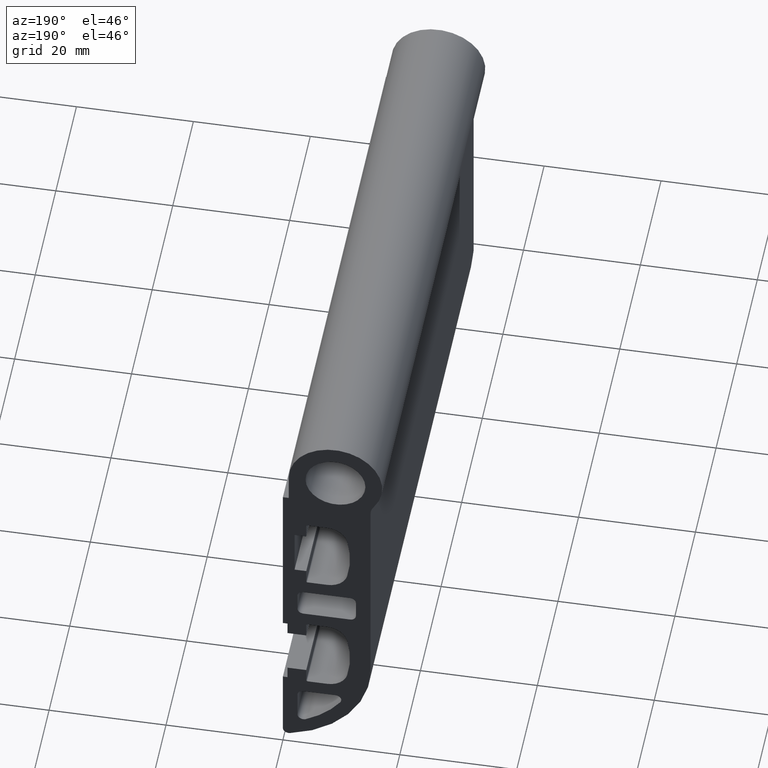
[diagram: clean part render]
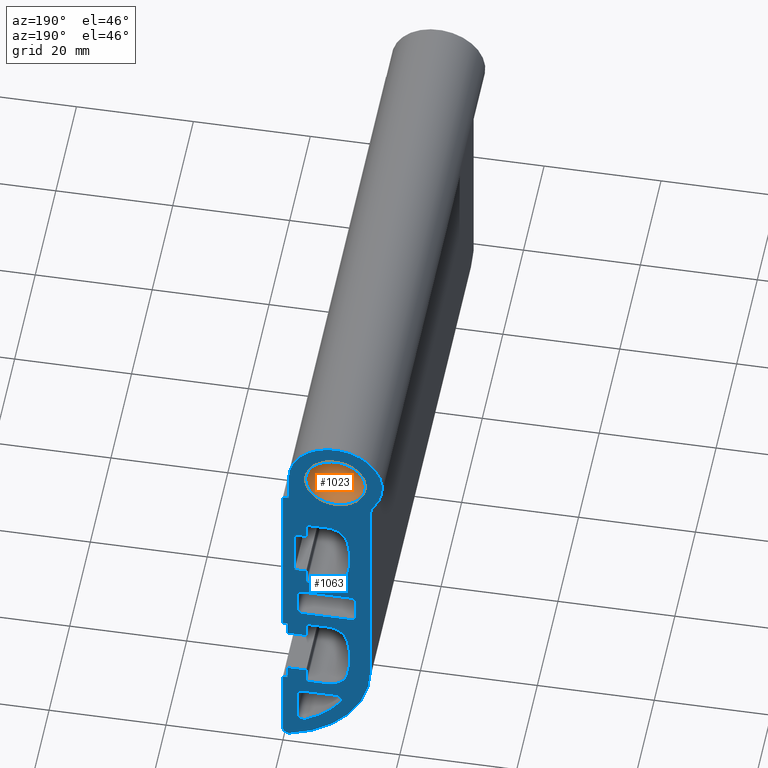
[diagram: same view with the hole feature highlighted: cylindrical wall and planar end face, labeled with their STEP entity ids]
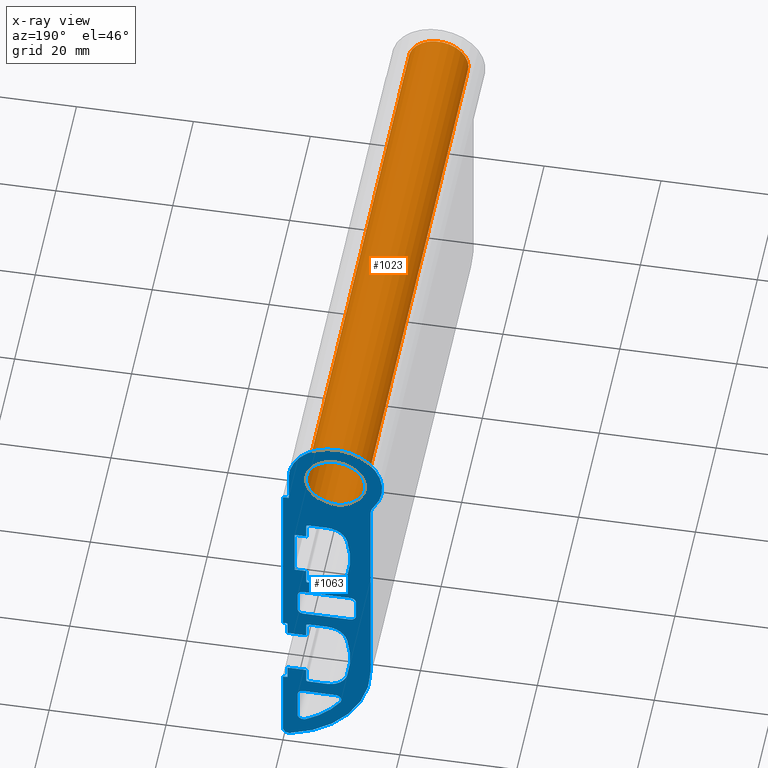
[diagram: x-ray of the same camera — body ghosted, the hole faces saturated]
A machine part, auxiliary view. The highlighted faces form one hole feature of diameter 10.25 mm: the cylindrical wall (entity #1023, orange) and its adjacent planar end face (entity #1063, blue) — they share a circular edge in the B-rep.
The next image is the same camera in x-ray (body ghosted, the hole faces saturated) — the bore reads through the body.
Wall:
#33=CIRCLE('',#1107,5.125);
#34=CIRCLE('',#1108,5.125);
#74=CYLINDRICAL_SURFACE('',#1106,5.125);
#104=FACE_OUTER_BOUND('',#157,.T.);
#157=EDGE_LOOP('',(#723,#724,#725,#726));
#232=LINE('',#1567,#339);
#339=VECTOR('',#1259,5.125);
#444=VERTEX_POINT('',#1564);
#445=VERTEX_POINT('',#1566);
#558=EDGE_CURVE('',#444,#444,#33,.T.);
#559=EDGE_CURVE('',#444,#445,#232,.T.);
#560=EDGE_CURVE('',#445,#445,#34,.T.);
#723=ORIENTED_EDGE('',*,*,#558,.F.);
#724=ORIENTED_EDGE('',*,*,#559,.T.);
#725=ORIENTED_EDGE('',*,*,#560,.F.);
#726=ORIENTED_EDGE('',*,*,#559,.F.);
#1023=ADVANCED_FACE('',(#104),#74,.F.);
#1106=AXIS2_PLACEMENT_3D('',#1563,#1255,#1256);
#1107=AXIS2_PLACEMENT_3D('',#1565,#1257,#1258);
#1108=AXIS2_PLACEMENT_3D('',#1568,#1260,#1261);
#1255=DIRECTION('center_axis',(0.,1.,0.));
#1256=DIRECTION('ref_axis',(1.,0.,0.));
#1257=DIRECTION('center_axis',(-1.09746301910575E-16,1.,-1.0166927632176E-17));
#1258=DIRECTION('ref_axis',(1.,0.,0.));
#1259=DIRECTION('',(0.,1.,0.));
#1260=DIRECTION('center_axis',(1.09746301910575E-16,-1.,1.0166927632176E-17));
#1261=DIRECTION('ref_axis',(1.,0.,0.));
#1563=CARTESIAN_POINT('Origin',(-9.,0.,5.));
#1564=CARTESIAN_POINT('',(-14.125,0.,5.));
#1565=CARTESIAN_POINT('Origin',(-9.,0.,5.));
#1566=CARTESIAN_POINT('',(-14.125,100.,5.));
#1567=CARTESIAN_POINT('',(-14.125,0.,5.));
#1568=CARTESIAN_POINT('Origin',(-9.,100.,5.));
End face:
#19=FACE_BOUND('',#202,.T.);
#20=FACE_BOUND('',#203,.T.);
#21=FACE_BOUND('',#204,.T.);
#22=FACE_BOUND('',#205,.T.);
#24=CIRCLE('',#1088,0.25);
#26=CIRCLE('',#1092,3.5);
#28=CIRCLE('',#1095,18.);
#30=CIRCLE('',#1098,3.5);
#32=CIRCLE('',#1102,0.25);
#34=CIRCLE('',#1108,5.125);
#36=CIRCLE('',#1111,1.);
#38=CIRCLE('',#1115,1.);
#40=CIRCLE('',#1119,1.);
#42=CIRCLE('',#1123,1.);
#44=CIRCLE('',#1127,1.);
#46=CIRCLE('',#1131,1.);
#48=CIRCLE('',#1134,15.5);
#50=CIRCLE('',#1137,1.);
#52=CIRCLE('',#1143,8.);
#54=CIRCLE('',#1146,3.);
#56=CIRCLE('',#1150,18.);
#58=CIRCLE('',#1153,1.);
#60=CIRCLE('',#1161,0.25);
#62=CIRCLE('',#1165,3.50000000000001);
#64=CIRCLE('',#1168,18.0000000000002);
#66=CIRCLE('',#1171,3.5);
#68=CIRCLE('',#1175,0.25);
#144=FACE_OUTER_BOUND('',#201,.T.);
#201=EDGE_LOOP('',(#930,#931,#932,#933,#934,#935,#936,#937,#938,#939,#940,
#941,#942,#943,#944,#945,#946,#947,#948,#949,#950,#951,#952,#953));
#202=EDGE_LOOP('',(#954,#955,#956,#957,#958,#959,#960,#961,#962,#963,#964,
#965));
#203=EDGE_LOOP('',(#966));
#204=EDGE_LOOP('',(#967,#968,#969,#970,#971,#972,#973,#974));
#205=EDGE_LOOP('',(#975,#976,#977,#978,#979,#980));
#208=LINE('',#1498,#315);
#212=LINE('',#1505,#319);
#216=LINE('',#1517,#323);
#222=LINE('',#1541,#329);
#226=LINE('',#1553,#333);
#229=LINE('',#1559,#336);
#231=LINE('',#1562,#338);
#237=LINE('',#1583,#344);
#241=LINE('',#1595,#348);
#245=LINE('',#1607,#352);
#248=LINE('',#1616,#355);
#253=LINE('',#1631,#360);
#258=LINE('',#1652,#365);
#261=LINE('',#1660,#368);
#264=LINE('',#1666,#371);
#269=LINE('',#1684,#376);
#274=LINE('',#1702,#381);
#277=LINE('',#1708,#384);
#280=LINE('',#1714,#387);
#283=LINE('',#1720,#390);
#286=LINE('',#1726,#393);
#290=LINE('',#1738,#397);
#296=LINE('',#1762,#403);
#300=LINE('',#1774,#407);
#303=LINE('',#1780,#410);
#306=LINE('',#1786,#413);
#309=LINE('',#1792,#416);
#312=LINE('',#1796,#419);
#315=VECTOR('',#1189,10.);
#319=VECTOR('',#1195,10.);
#323=VECTOR('',#1207,10.);
#329=VECTOR('',#1233,10.);
#333=VECTOR('',#1245,10.);
#336=VECTOR('',#1250,10.);
#338=VECTOR('',#1254,10.);
#344=VECTOR('',#1274,10.);
#348=VECTOR('',#1286,10.);
#352=VECTOR('',#1298,10.);
#355=VECTOR('',#1309,10.);
#360=VECTOR('',#1322,10.);
#365=VECTOR('',#1347,10.);
#368=VECTOR('',#1352,10.);
#371=VECTOR('',#1357,10.);
#376=VECTOR('',#1376,10.);
#381=VECTOR('',#1395,10.);
#384=VECTOR('',#1400,10.);
#387=VECTOR('',#1405,10.);
#390=VECTOR('',#1410,10.);
#393=VECTOR('',#1415,10.);
#397=VECTOR('',#1427,10.);
#403=VECTOR('',#1453,10.);
#407=VECTOR('',#1465,10.);
#410=VECTOR('',#1470,10.);
#413=VECTOR('',#1475,10.);
#416=VECTOR('',#1480,10.);
#419=VECTOR('',#1485,10.);
#422=VERTEX_POINT('',#1495);
#423=VERTEX_POINT('',#1497);
#425=VERTEX_POINT('',#1503);
#427=VERTEX_POINT('',#1509);
#429=VERTEX_POINT('',#1515);
#431=VERTEX_POINT('',#1521);
#433=VERTEX_POINT('',#1527);
#435=VERTEX_POINT('',#1533);
#437=VERTEX_POINT('',#1539);
#439=VERTEX_POINT('',#1545);
#441=VERTEX_POINT('',#1551);
#443=VERTEX_POINT('',#1557);
#445=VERTEX_POINT('',#1566);
#448=VERTEX_POINT('',#1573);
#449=VERTEX_POINT('',#1575);
#451=VERTEX_POINT('',#1581);
#453=VERTEX_POINT('',#1587);
#455=VERTEX_POINT('',#1593);
#457=VERTEX_POINT('',#1599);
#459=VERTEX_POINT('',#1605);
#461=VERTEX_POINT('',#1611);
#464=VERTEX_POINT('',#1621);
#465=VERTEX_POINT('',#1623);
#467=VERTEX_POINT('',#1629);
#469=VERTEX_POINT('',#1635);
#471=VERTEX_POINT('',#1641);
#473=VERTEX_POINT('',#1647);
#476=VERTEX_POINT('',#1657);
#477=VERTEX_POINT('',#1659);
#479=VERTEX_POINT('',#1665);
#481=VERTEX_POINT('',#1671);
#483=VERTEX_POINT('',#1677);
#485=VERTEX_POINT('',#1683);
#487=VERTEX_POINT('',#1689);
#489=VERTEX_POINT('',#1695);
#491=VERTEX_POINT('',#1701);
#493=VERTEX_POINT('',#1707);
#495=VERTEX_POINT('',#1713);
#497=VERTEX_POINT('',#1719);
#499=VERTEX_POINT('',#1725);
#501=VERTEX_POINT('',#1731);
#503=VERTEX_POINT('',#1737);
#505=VERTEX_POINT('',#1743);
#507=VERTEX_POINT('',#1749);
#509=VERTEX_POINT('',#1755);
#511=VERTEX_POINT('',#1761);
#513=VERTEX_POINT('',#1767);
#515=VERTEX_POINT('',#1773);
#517=VERTEX_POINT('',#1779);
#519=VERTEX_POINT('',#1785);
#521=VERTEX_POINT('',#1791);
#524=EDGE_CURVE('',#423,#422,#208,.T.);
#528=EDGE_CURVE('',#422,#425,#212,.T.);
#531=EDGE_CURVE('',#425,#427,#24,.T.);
#534=EDGE_CURVE('',#427,#429,#216,.T.);
#537=EDGE_CURVE('',#429,#431,#26,.T.);
#540=EDGE_CURVE('',#431,#433,#28,.T.);
#543=EDGE_CURVE('',#433,#435,#30,.T.);
#546=EDGE_CURVE('',#435,#437,#222,.T.);
#549=EDGE_CURVE('',#437,#439,#32,.T.);
#552=EDGE_CURVE('',#439,#441,#226,.T.);
#555=EDGE_CURVE('',#441,#443,#229,.T.);
#557=EDGE_CURVE('',#443,#423,#231,.T.);
#560=EDGE_CURVE('',#445,#445,#34,.T.);
#563=EDGE_CURVE('',#449,#448,#36,.T.);
#567=EDGE_CURVE('',#448,#451,#237,.T.);
#570=EDGE_CURVE('',#451,#453,#38,.T.);
#573=EDGE_CURVE('',#453,#455,#241,.T.);
#576=EDGE_CURVE('',#455,#457,#40,.T.);
#579=EDGE_CURVE('',#457,#459,#245,.T.);
#582=EDGE_CURVE('',#459,#461,#42,.T.);
#584=EDGE_CURVE('',#461,#449,#248,.T.);
#587=EDGE_CURVE('',#465,#464,#44,.T.);
#591=EDGE_CURVE('',#464,#467,#253,.T.);
#594=EDGE_CURVE('',#467,#469,#46,.T.);
#597=EDGE_CURVE('',#469,#471,#48,.T.);
#600=EDGE_CURVE('',#471,#473,#50,.T.);
#602=EDGE_CURVE('',#473,#465,#258,.T.);
#605=EDGE_CURVE('',#477,#476,#261,.T.);
#608=EDGE_CURVE('',#479,#477,#264,.T.);
#611=EDGE_CURVE('',#481,#479,#52,.T.);
#614=EDGE_CURVE('',#483,#481,#54,.T.);
#617=EDGE_CURVE('',#485,#483,#269,.T.);
#620=EDGE_CURVE('',#487,#485,#56,.T.);
#623=EDGE_CURVE('',#489,#487,#58,.T.);
#626=EDGE_CURVE('',#491,#489,#274,.T.);
#629=EDGE_CURVE('',#493,#491,#277,.T.);
#632=EDGE_CURVE('',#495,#493,#280,.T.);
#635=EDGE_CURVE('',#497,#495,#283,.T.);
#638=EDGE_CURVE('',#499,#497,#286,.T.);
#641=EDGE_CURVE('',#501,#499,#60,.T.);
#644=EDGE_CURVE('',#503,#501,#290,.T.);
#647=EDGE_CURVE('',#505,#503,#62,.T.);
#650=EDGE_CURVE('',#507,#505,#64,.T.);
#653=EDGE_CURVE('',#509,#507,#66,.T.);
#656=EDGE_CURVE('',#511,#509,#296,.T.);
#659=EDGE_CURVE('',#513,#511,#68,.T.);
#662=EDGE_CURVE('',#515,#513,#300,.T.);
#665=EDGE_CURVE('',#517,#515,#303,.T.);
#668=EDGE_CURVE('',#519,#517,#306,.T.);
#671=EDGE_CURVE('',#521,#519,#309,.T.);
#674=EDGE_CURVE('',#476,#521,#312,.T.);
#930=ORIENTED_EDGE('',*,*,#674,.T.);
#931=ORIENTED_EDGE('',*,*,#671,.T.);
#932=ORIENTED_EDGE('',*,*,#668,.T.);
#933=ORIENTED_EDGE('',*,*,#665,.T.);
#934=ORIENTED_EDGE('',*,*,#662,.T.);
#935=ORIENTED_EDGE('',*,*,#659,.T.);
#936=ORIENTED_EDGE('',*,*,#656,.T.);
#937=ORIENTED_EDGE('',*,*,#653,.T.);
#938=ORIENTED_EDGE('',*,*,#650,.T.);
#939=ORIENTED_EDGE('',*,*,#647,.T.);
#940=ORIENTED_EDGE('',*,*,#644,.T.);
#941=ORIENTED_EDGE('',*,*,#641,.T.);
#942=ORIENTED_EDGE('',*,*,#638,.T.);
#943=ORIENTED_EDGE('',*,*,#635,.T.);
#944=ORIENTED_EDGE('',*,*,#632,.T.);
#945=ORIENTED_EDGE('',*,*,#629,.T.);
#946=ORIENTED_EDGE('',*,*,#626,.T.);
#947=ORIENTED_EDGE('',*,*,#623,.T.);
#948=ORIENTED_EDGE('',*,*,#620,.T.);
#949=ORIENTED_EDGE('',*,*,#617,.T.);
#950=ORIENTED_EDGE('',*,*,#614,.T.);
#951=ORIENTED_EDGE('',*,*,#611,.T.);
#952=ORIENTED_EDGE('',*,*,#608,.T.);
#953=ORIENTED_EDGE('',*,*,#605,.T.);
#954=ORIENTED_EDGE('',*,*,#524,.T.);
#955=ORIENTED_EDGE('',*,*,#528,.T.);
#956=ORIENTED_EDGE('',*,*,#531,.T.);
#957=ORIENTED_EDGE('',*,*,#534,.T.);
#958=ORIENTED_EDGE('',*,*,#537,.T.);
#959=ORIENTED_EDGE('',*,*,#540,.T.);
#960=ORIENTED_EDGE('',*,*,#543,.T.);
#961=ORIENTED_EDGE('',*,*,#546,.T.);
#962=ORIENTED_EDGE('',*,*,#549,.T.);
#963=ORIENTED_EDGE('',*,*,#552,.T.);
#964=ORIENTED_EDGE('',*,*,#555,.T.);
#965=ORIENTED_EDGE('',*,*,#557,.T.);
#966=ORIENTED_EDGE('',*,*,#560,.T.);
#967=ORIENTED_EDGE('',*,*,#563,.T.);
#968=ORIENTED_EDGE('',*,*,#567,.T.);
#969=ORIENTED_EDGE('',*,*,#570,.T.);
#970=ORIENTED_EDGE('',*,*,#573,.T.);
#971=ORIENTED_EDGE('',*,*,#576,.T.);
#972=ORIENTED_EDGE('',*,*,#579,.T.);
#973=ORIENTED_EDGE('',*,*,#582,.T.);
#974=ORIENTED_EDGE('',*,*,#584,.T.);
#975=ORIENTED_EDGE('',*,*,#587,.T.);
#976=ORIENTED_EDGE('',*,*,#591,.T.);
#977=ORIENTED_EDGE('',*,*,#594,.T.);
#978=ORIENTED_EDGE('',*,*,#597,.T.);
#979=ORIENTED_EDGE('',*,*,#600,.T.);
#980=ORIENTED_EDGE('',*,*,#602,.T.);
#1010=PLANE('',#1182);
#1063=ADVANCED_FACE('',(#144,#19,#20,#21,#22),#1010,.T.);
#1088=AXIS2_PLACEMENT_3D('',#1511,#1201,#1202);
#1092=AXIS2_PLACEMENT_3D('',#1523,#1213,#1214);
#1095=AXIS2_PLACEMENT_3D('',#1529,#1220,#1221);
#1098=AXIS2_PLACEMENT_3D('',#1535,#1227,#1228);
#1102=AXIS2_PLACEMENT_3D('',#1547,#1239,#1240);
#1108=AXIS2_PLACEMENT_3D('',#1568,#1260,#1261);
#1111=AXIS2_PLACEMENT_3D('',#1576,#1267,#1268);
#1115=AXIS2_PLACEMENT_3D('',#1589,#1280,#1281);
#1119=AXIS2_PLACEMENT_3D('',#1601,#1292,#1293);
#1123=AXIS2_PLACEMENT_3D('',#1613,#1304,#1305);
#1127=AXIS2_PLACEMENT_3D('',#1624,#1315,#1316);
#1131=AXIS2_PLACEMENT_3D('',#1637,#1328,#1329);
#1134=AXIS2_PLACEMENT_3D('',#1643,#1335,#1336);
#1137=AXIS2_PLACEMENT_3D('',#1649,#1342,#1343);
#1143=AXIS2_PLACEMENT_3D('',#1672,#1363,#1364);
#1146=AXIS2_PLACEMENT_3D('',#1678,#1370,#1371);
#1150=AXIS2_PLACEMENT_3D('',#1690,#1382,#1383);
#1153=AXIS2_PLACEMENT_3D('',#1696,#1389,#1390);
#1161=AXIS2_PLACEMENT_3D('',#1732,#1421,#1422);
#1165=AXIS2_PLACEMENT_3D('',#1744,#1433,#1434);
#1168=AXIS2_PLACEMENT_3D('',#1750,#1440,#1441);
#1171=AXIS2_PLACEMENT_3D('',#1756,#1447,#1448);
#1175=AXIS2_PLACEMENT_3D('',#1768,#1459,#1460);
#1182=AXIS2_PLACEMENT_3D('',#1798,#1488,#1489);
#1189=DIRECTION('',(-1.,-1.09746301910575E-16,-5.55111512312563E-16));
#1195=DIRECTION('',(-9.06304509898087E-16,1.01669276321759E-17,1.));
#1201=DIRECTION('center_axis',(1.09746301910575E-16,-1.,1.0166927632176E-17));
#1202=DIRECTION('ref_axis',(0.,0.,1.));
#1207=DIRECTION('',(-1.,-1.09746301910576E-16,-6.65601333708138E-16));
#1213=DIRECTION('center_axis',(1.09746301910575E-16,-1.,1.0166927632176E-17));
#1214=DIRECTION('ref_axis',(-0.972120278519912,0.,0.23448275862069));
#1220=DIRECTION('center_axis',(1.09746301910575E-16,-1.,1.0166927632176E-17));
#1221=DIRECTION('ref_axis',(-0.972120278519912,0.,-0.23448275862069));
#1227=DIRECTION('center_axis',(1.09746301910575E-16,-1.,1.0166927632176E-17));
#1228=DIRECTION('ref_axis',(6.34413156928662E-16,0.,-1.));
#1233=DIRECTION('',(1.,1.09746301910575E-16,-6.65601333708137E-16));
#1239=DIRECTION('center_axis',(1.09746301910575E-16,-1.,1.0166927632176E-17));
#1240=DIRECTION('ref_axis',(1.,0.,0.));
#1245=DIRECTION('',(-9.06304509898086E-16,1.01669276321759E-17,1.));
#1250=DIRECTION('',(1.,1.09746301910575E-16,0.));
#1254=DIRECTION('',(-7.26931742314091E-16,1.01669276321759E-17,1.));
#1260=DIRECTION('center_axis',(1.09746301910575E-16,-1.,1.0166927632176E-17));
#1261=DIRECTION('ref_axis',(1.,0.,0.));
#1267=DIRECTION('center_axis',(1.09746301910575E-16,-1.,1.0166927632176E-17));
#1268=DIRECTION('ref_axis',(-5.55111512312575E-16,0.,1.));
#1274=DIRECTION('',(-1.,-1.09746301910576E-16,-1.11022302462516E-15));
#1280=DIRECTION('center_axis',(1.09746301910575E-16,-1.,1.0166927632176E-17));
#1281=DIRECTION('ref_axis',(-1.,0.,0.));
#1286=DIRECTION('',(6.93889390390721E-16,-1.01669276321759E-17,-1.));
#1292=DIRECTION('center_axis',(1.09746301910575E-16,-1.,1.0166927632176E-17));
#1293=DIRECTION('ref_axis',(0.,0.,-1.));
#1298=DIRECTION('',(1.,1.09746301910575E-16,0.));
#1304=DIRECTION('center_axis',(1.09746301910575E-16,-1.,1.0166927632176E-17));
#1305=DIRECTION('ref_axis',(1.,0.,0.));
#1309=DIRECTION('',(-6.93889390390722E-16,1.01669276321759E-17,1.));
#1315=DIRECTION('center_axis',(1.09746301910575E-16,-1.,1.0166927632176E-17));
#1316=DIRECTION('ref_axis',(0.,0.,1.));
#1322=DIRECTION('',(-1.,-1.09746301910575E-16,0.));
#1328=DIRECTION('center_axis',(1.09746301910575E-16,-1.,1.0166927632176E-17));
#1329=DIRECTION('ref_axis',(-0.827155908169604,0.,-0.561972511409693));
#1335=DIRECTION('center_axis',(1.09746301910575E-16,-1.,1.0166927632176E-17));
#1336=DIRECTION('ref_axis',(-0.448259356445468,0.,-0.89390354589245));
#1342=DIRECTION('center_axis',(1.09746301910575E-16,-1.,1.0166927632176E-17));
#1343=DIRECTION('ref_axis',(1.,0.,0.));
#1347=DIRECTION('',(1.15335863767417E-16,1.0166927632176E-17,1.));
#1352=DIRECTION('',(1.,0.,-6.12323399573678E-17));
#1357=DIRECTION('',(-5.55111512312579E-17,0.,-1.));
#1363=DIRECTION('center_axis',(0.,1.,0.));
#1364=DIRECTION('ref_axis',(0.818181818181817,0.,0.57495957457607));
#1370=DIRECTION('center_axis',(0.,-1.,0.));
#1371=DIRECTION('ref_axis',(0.818181818181818,0.,0.57495957457607));
#1376=DIRECTION('',(4.65590980766722E-16,0.,1.));
#1382=DIRECTION('center_axis',(0.,1.,0.));
#1383=DIRECTION('ref_axis',(0.235294117647058,0.,0.971924214226959));
#1389=DIRECTION('center_axis',(0.,1.,0.));
#1390=DIRECTION('ref_axis',(-1.,0.,0.));
#1395=DIRECTION('',(7.7715611723761E-16,0.,-1.));
#1400=DIRECTION('',(1.,0.,1.11022302462516E-14));
#1405=DIRECTION('',(9.05073117900934E-16,0.,-1.));
#1410=DIRECTION('',(1.,0.,0.));
#1415=DIRECTION('',(-6.79728382423565E-16,0.,1.));
#1421=DIRECTION('center_axis',(0.,-1.,0.));
#1422=DIRECTION('ref_axis',(1.,0.,0.));
#1427=DIRECTION('',(1.,0.,2.66240533483255E-15));
#1433=DIRECTION('center_axis',(0.,-1.,0.));
#1434=DIRECTION('ref_axis',(0.,0.,-1.));
#1440=DIRECTION('center_axis',(0.,-1.,0.));
#1441=DIRECTION('ref_axis',(-0.972120278519913,0.,-0.234482758620687));
#1447=DIRECTION('center_axis',(0.,-1.,0.));
#1448=DIRECTION('ref_axis',(-0.972120278519913,0.,0.234482758620687));
#1453=DIRECTION('',(-1.,0.,-2.66240533483255E-15));
#1459=DIRECTION('center_axis',(0.,-1.,0.));
#1460=DIRECTION('ref_axis',(0.,0.,1.));
#1465=DIRECTION('',(2.26576127474522E-16,0.,1.));
#1470=DIRECTION('',(-1.,0.,0.));
#1475=DIRECTION('',(-6.03382078600627E-17,0.,-1.));
#1480=DIRECTION('',(-1.,0.,0.));
#1485=DIRECTION('',(-4.18608681416043E-16,0.,-1.));
#1488=DIRECTION('center_axis',(-1.09746301910575E-16,1.,-1.0166927632176E-17));
#1489=DIRECTION('ref_axis',(0.,1.0166927632176E-17,1.));
#1495=CARTESIAN_POINT('',(-4.00000000000006,100.,-8.8));
#1497=CARTESIAN_POINT('',(-2.,100.,-8.8));
#1498=CARTESIAN_POINT('',(-5.65605294725964,100.,-8.8));
#1503=CARTESIAN_POINT('',(-4.00000000000006,100.,-6.35));
#1505=CARTESIAN_POINT('',(-4.00000000000005,100.,-15.1541286869207));
#1509=CARTESIAN_POINT('',(-4.25000000000006,100.,-6.1));
#1511=CARTESIAN_POINT('Origin',(-4.25000000000006,100.,-6.35));
#1515=CARTESIAN_POINT('',(-7.586,100.,-6.1));
#1517=CARTESIAN_POINT('',(-7.44905294725961,100.,-6.1));
#1521=CARTESIAN_POINT('',(-10.9884209748197,100.,-8.77931034482758));
#1523=CARTESIAN_POINT('Origin',(-7.586,100.,-9.6));
#1527=CARTESIAN_POINT('',(-10.9884209748197,100.,-17.2206896551724));
#1529=CARTESIAN_POINT('Origin',(6.50974403853872,100.,-13.));
#1533=CARTESIAN_POINT('',(-7.586,100.,-19.9));
#1535=CARTESIAN_POINT('Origin',(-7.586,100.,-16.4));
#1539=CARTESIAN_POINT('',(-4.25000000000005,100.,-19.9));
#1541=CARTESIAN_POINT('',(-5.78105294725963,100.,-19.9));
#1545=CARTESIAN_POINT('',(-4.00000000000005,100.,-19.65));
#1547=CARTESIAN_POINT('Origin',(-4.25000000000005,100.,-19.65));
#1551=CARTESIAN_POINT('',(-4.00000000000005,100.,-17.2));
#1553=CARTESIAN_POINT('',(-4.00000000000005,100.,-20.5791286869207));
#1557=CARTESIAN_POINT('',(-2.,100.,-17.2));
#1559=CARTESIAN_POINT('',(-4.6560529472596,100.,-17.2));
#1562=CARTESIAN_POINT('',(-2.,100.,-16.3791286869207));
#1566=CARTESIAN_POINT('',(-14.125,100.,5.));
#1568=CARTESIAN_POINT('Origin',(-9.,100.,5.));
#1573=CARTESIAN_POINT('',(-3.50000000000002,100.,-22.4));
#1575=CARTESIAN_POINT('',(-2.50000000000002,100.,-23.4));
#1576=CARTESIAN_POINT('Origin',(-3.50000000000002,100.,-23.4));
#1581=CARTESIAN_POINT('',(-11.5,100.,-22.4));
#1583=CARTESIAN_POINT('',(-9.40605294725962,100.,-22.4));
#1587=CARTESIAN_POINT('',(-12.5,100.,-23.4));
#1589=CARTESIAN_POINT('Origin',(-11.5,100.,-23.4));
#1593=CARTESIAN_POINT('',(-12.5,100.,-26.6));
#1595=CARTESIAN_POINT('',(-12.5,100.,-25.2791286869207));
#1599=CARTESIAN_POINT('',(-11.5,100.,-27.6));
#1601=CARTESIAN_POINT('Origin',(-11.5,100.,-26.6));
#1605=CARTESIAN_POINT('',(-3.50000000000002,100.,-27.6));
#1607=CARTESIAN_POINT('',(-5.40605294725962,100.,-27.6));
#1611=CARTESIAN_POINT('',(-2.50000000000002,100.,-26.6));
#1613=CARTESIAN_POINT('Origin',(-3.50000000000002,100.,-26.6));
#1616=CARTESIAN_POINT('',(-2.50000000000002,100.,-23.6791286869207));
#1621=CARTESIAN_POINT('',(-3.5,100.,-46.4));
#1623=CARTESIAN_POINT('',(-2.5,100.,-47.4));
#1624=CARTESIAN_POINT('Origin',(-3.5,100.,-47.4));
#1629=CARTESIAN_POINT('',(-8.994,100.,-46.4));
#1631=CARTESIAN_POINT('',(-8.15305294725961,100.,-46.4));
#1635=CARTESIAN_POINT('',(-9.82115590816961,100.,-47.9619725114097));
#1637=CARTESIAN_POINT('Origin',(-8.994,100.,-47.4));
#1641=CARTESIAN_POINT('',(-3.94825935644547,100.,-53.1069035458925));
#1643=CARTESIAN_POINT('Origin',(2.99976066845928,100.,-39.2513985845595));
#1647=CARTESIAN_POINT('',(-2.5,100.,-52.213));
#1649=CARTESIAN_POINT('Origin',(-3.5,100.,-52.213));
#1652=CARTESIAN_POINT('',(-2.5,100.,-35.6791286869207));
#1657=CARTESIAN_POINT('',(0.,100.,0.));
#1659=CARTESIAN_POINT('',(-1.,100.,0.));
#1660=CARTESIAN_POINT('',(0.,100.,0.));
#1665=CARTESIAN_POINT('',(-1.,100.,5.));
#1666=CARTESIAN_POINT('',(-1.,100.,6.12323399573678E-17));
#1671=CARTESIAN_POINT('',(-15.5454545454545,100.,0.40032340339144));
#1672=CARTESIAN_POINT('Origin',(-9.,100.,5.));
#1677=CARTESIAN_POINT('',(-15.,100.,-1.32455532033677));
#1678=CARTESIAN_POINT('Origin',(-18.,100.,-1.32455532033677));
#1683=CARTESIAN_POINT('',(-15.,100.,-39.4772883581417));
#1684=CARTESIAN_POINT('',(-15.,100.,-1.32455532033677));
#1689=CARTESIAN_POINT('',(-1.23529411764706,100.,-56.971924214227));
#1690=CARTESIAN_POINT('Origin',(2.99999999999999,100.,-39.4772883581417));
#1695=CARTESIAN_POINT('',(4.16333634234434E-15,100.,-56.));
#1696=CARTESIAN_POINT('Origin',(-0.999999999999997,100.,-56.));
#1701=CARTESIAN_POINT('',(-5.55111512312579E-15,100.,-43.5));
#1702=CARTESIAN_POINT('',(4.16333634234434E-15,100.,-56.));
#1707=CARTESIAN_POINT('',(-0.800000000000006,100.,-43.5));
#1708=CARTESIAN_POINT('',(-5.55111512312579E-15,100.,-43.5));
#1713=CARTESIAN_POINT('',(-0.800000000000008,100.,-41.2));
#1714=CARTESIAN_POINT('',(-0.800000000000006,100.,-43.5));
#1719=CARTESIAN_POINT('',(-4.00000000000005,100.,-41.2));
#1720=CARTESIAN_POINT('',(-0.800000000000008,100.,-41.2));
#1725=CARTESIAN_POINT('',(-4.00000000000005,100.,-43.65));
#1726=CARTESIAN_POINT('',(-4.00000000000005,100.,-41.2));
#1731=CARTESIAN_POINT('',(-4.25000000000005,100.,-43.9));
#1732=CARTESIAN_POINT('Origin',(-4.25000000000005,100.,-43.65));
#1737=CARTESIAN_POINT('',(-7.586,100.,-43.9));
#1738=CARTESIAN_POINT('',(-4.25000000000005,100.,-43.9));
#1743=CARTESIAN_POINT('',(-10.9884209748197,100.,-41.2206896551724));
#1744=CARTESIAN_POINT('Origin',(-7.586,100.,-40.4));
#1749=CARTESIAN_POINT('',(-10.9884209748197,100.,-32.7793103448276));
#1750=CARTESIAN_POINT('Origin',(6.50974403853893,100.,-37.));
#1755=CARTESIAN_POINT('',(-7.586,100.,-30.1));
#1756=CARTESIAN_POINT('Origin',(-7.586,100.,-33.6));
#1761=CARTESIAN_POINT('',(-4.25000000000005,100.,-30.1));
#1762=CARTESIAN_POINT('',(-7.586,100.,-30.1));
#1767=CARTESIAN_POINT('',(-4.00000000000005,100.,-30.35));
#1768=CARTESIAN_POINT('Origin',(-4.25000000000005,100.,-30.35));
#1773=CARTESIAN_POINT('',(-4.00000000000005,100.,-32.8));
#1774=CARTESIAN_POINT('',(-4.00000000000005,100.,-30.35));
#1779=CARTESIAN_POINT('',(-0.800000000000013,100.,-32.8));
#1780=CARTESIAN_POINT('',(-4.00000000000005,100.,-32.8));
#1785=CARTESIAN_POINT('',(-0.800000000000013,100.,-30.5));
#1786=CARTESIAN_POINT('',(-0.800000000000013,100.,-32.8));
#1791=CARTESIAN_POINT('',(-1.27675647831893E-14,100.,-30.5));
#1792=CARTESIAN_POINT('',(-0.800000000000013,100.,-30.5));
#1796=CARTESIAN_POINT('',(-1.27675647831893E-14,100.,-30.5));
#1798=CARTESIAN_POINT('Origin',(-7.3121058945192,100.,-23.9582573738413));